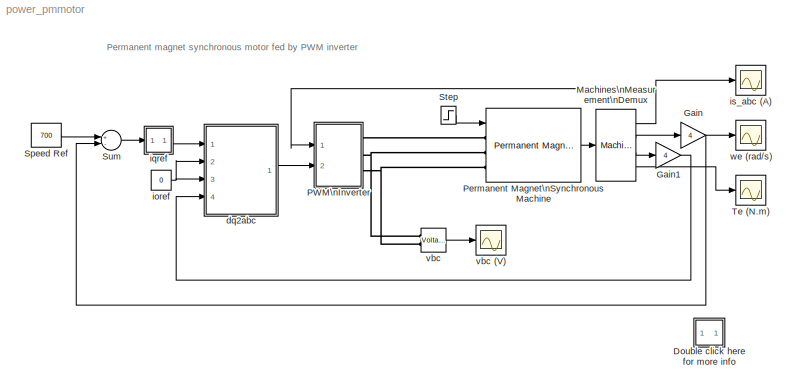
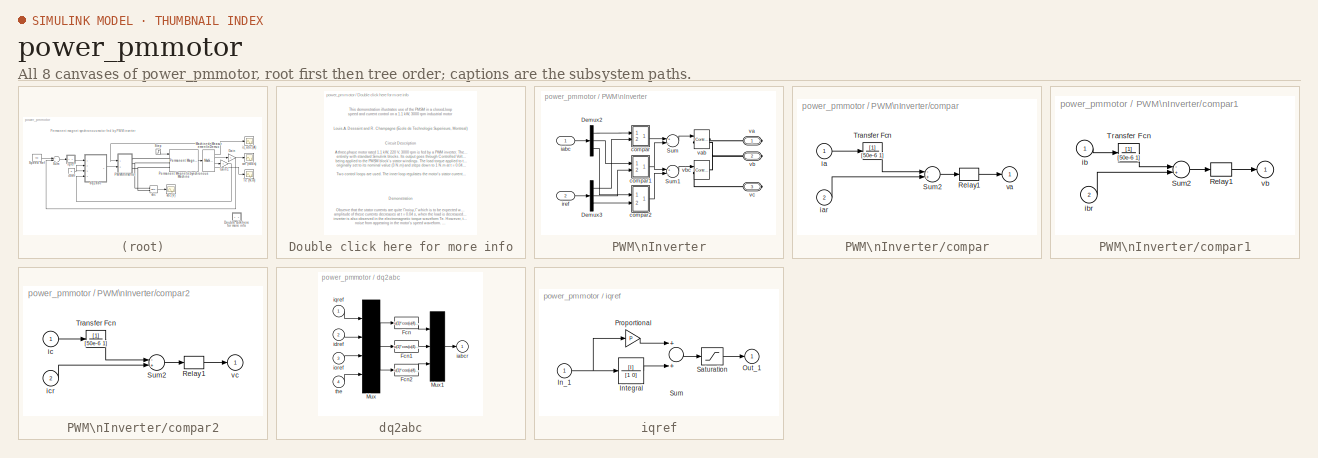
[diagram: thumbnail index - all 8 canvases of the model, root first then tree order]
MODEL power_pmmotor
KIND model
BLOCK [SubSystem] Double click here for more info
  MaskDisplay = disp('?')
  MaskIconFrame = on
  MaskIconOpaque = on
  MaskIconRotate = none
  MaskIconUnits = autoscale
  MinAlgLoopOccurrences = off
  Ports = []
  RTWSystemCode = Auto
  TreatAsAtomicUnit = off
BLOCK [Gain] Gain
  Gain = 4
BLOCK [Gain] Gain1
  Gain = 4
BLOCK [Reference] Machines\nMeasurement\nDemux  REF=powerlib/Machines/Machines\nMeasurement\nDemux
  Ports = [1, 4]
  ShowPortLabels = on
  SourceBlock = powerlib/Machines/Machines\nMeasurement\nDemux
  SourceType = Machine measurements
  asm1 = on
  asm10 = on
  asm11 = on
  asm2 = on
  asm3 = on
  asm4 = on
  asm5 = on
  asm6 = on
  asm7 = on
  asm8 = on
  asm9 = on
  lastType = 4
  machType = Permanent magnet synchronous
  pmsm1 = on
  pmsm2 = off
  pmsm3 = off
  pmsm4 = on
  pmsm5 = on
  pmsm6 = on
  sm1 = on
  sm10 = on
  sm11 = on
  sm115 = off
  sm12 = off
  sm13 = off
  sm14 = off
  sm2 = on
  sm3 = on
  sm4 = on
  sm5 = on
  sm6 = on
  sm7 = on
  sm8 = on
  sm9 = on
  ssm1 = on
  ssm2 = on
  ssm3 = on
  ssm4 = on
  ssm5 = on
  ssm6 = on
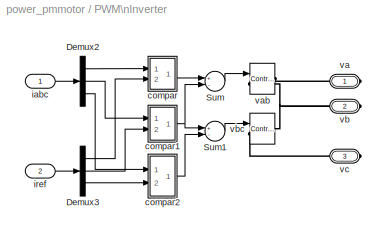
BLOCK [SubSystem] PWM\nInverter
  MinAlgLoopOccurrences = off
  Ports = [2, 0, 0, 0, 0, 0, 3]
  RTWSystemCode = Auto
  TreatAsAtomicUnit = off
BLOCK [Demux] PWM\nInverter/Demux2
  Outputs = 3
  Ports = [1, 3]
BLOCK [Demux] PWM\nInverter/Demux3
  Outputs = 3
  Ports = [1, 3]
BLOCK [Sum] PWM\nInverter/Sum
  Inputs = +-
  Ports = [2, 1]
BLOCK [Sum] PWM\nInverter/Sum1
  Inputs = +-
  Ports = [2, 1]
BLOCK [SubSystem] PWM\nInverter/compar
  MinAlgLoopOccurrences = off
  Ports = [2, 1]
  RTWSystemCode = Auto
  TreatAsAtomicUnit = off
BLOCK [Relay] PWM\nInverter/compar/Relay1
  OffOutputValue = -155
  OffSwitchValue = -0.25
  OnOutputValue = 155
  OnSwitchValue = 0.25
BLOCK [Sum] PWM\nInverter/compar/Sum2
  Inputs = -+
  Ports = [2, 1]
BLOCK [TransferFcn] PWM\nInverter/compar/Transfer Fcn
  Denominator = [50e-6 1]
BLOCK [Inport] PWM\nInverter/compar/ia
  IconDisplay = Port number
  LatchInput = off
  Port = 1
BLOCK [Inport] PWM\nInverter/compar/iar
  IconDisplay = Port number
  LatchInput = off
  Port = 2
BLOCK [Outport] PWM\nInverter/compar/va
  BusOutputAsStruct = off
  IconDisplay = Port number
  InitialOutput = 0
BLOCK [SubSystem] PWM\nInverter/compar1
  MinAlgLoopOccurrences = off
  Ports = [2, 1]
  RTWSystemCode = Auto
  TreatAsAtomicUnit = off
BLOCK [Relay] PWM\nInverter/compar1/Relay1
  OffOutputValue = -155
  OffSwitchValue = -0.25
  OnOutputValue = 155
  OnSwitchValue = 0.25
BLOCK [Sum] PWM\nInverter/compar1/Sum2
  Inputs = -+
  Ports = [2, 1]
BLOCK [TransferFcn] PWM\nInverter/compar1/Transfer Fcn
  Denominator = [50e-6 1]
BLOCK [Inport] PWM\nInverter/compar1/ib
  IconDisplay = Port number
  LatchInput = off
  Port = 1
BLOCK [Inport] PWM\nInverter/compar1/ibr
  IconDisplay = Port number
  LatchInput = off
  Port = 2
BLOCK [Outport] PWM\nInverter/compar1/vb
  BusOutputAsStruct = off
  IconDisplay = Port number
  InitialOutput = 0
BLOCK [SubSystem] PWM\nInverter/compar2
  MinAlgLoopOccurrences = off
  Ports = [2, 1]
  RTWSystemCode = Auto
  TreatAsAtomicUnit = off
BLOCK [Relay] PWM\nInverter/compar2/Relay1
  OffOutputValue = -155
  OffSwitchValue = -0.25
  OnOutputValue = 155
  OnSwitchValue = 0.25
BLOCK [Sum] PWM\nInverter/compar2/Sum2
  Inputs = -+
  Ports = [2, 1]
BLOCK [TransferFcn] PWM\nInverter/compar2/Transfer Fcn
  Denominator = [50e-6 1]
BLOCK [Inport] PWM\nInverter/compar2/ic
  IconDisplay = Port number
  LatchInput = off
  Port = 1
BLOCK [Inport] PWM\nInverter/compar2/icr
  IconDisplay = Port number
  LatchInput = off
  Port = 2
BLOCK [Outport] PWM\nInverter/compar2/vc
  BusOutputAsStruct = off
  IconDisplay = Port number
  InitialOutput = 0
BLOCK [Inport] PWM\nInverter/iabc
  IconDisplay = Port number
  LatchInput = off
  Port = 1
BLOCK [Inport] PWM\nInverter/iref
  IconDisplay = Port number
  LatchInput = off
  Port = 2
BLOCK [PMIOPort] PWM\nInverter/va
  Port = 1
  Side = Right
BLOCK [Reference] PWM\nInverter/vab  REF=powerlib/Electrical\nSources/Controlled Voltage Source
  Amplitude = 0
  AttributesFormatString = \\n
  Description = source block
  Frequency = 0
  Initialize = on
  Measurements = None
  Phase = 0
  Ports = [1, 0, 0, 0, 0, 1, 1]
  ShowPortLabels = on
  SourceBlock = powerlib/Electrical\nSources/Controlled Voltage Source
  SourceType = AC
BLOCK [PMIOPort] PWM\nInverter/vb
  Port = 2
  Side = Right
BLOCK [Reference] PWM\nInverter/vbc  REF=powerlib/Electrical\nSources/Controlled Voltage Source
  Amplitude = 0
  AttributesFormatString = \\n
  Description = source block
  Frequency = 0
  Initialize = on
  Measurements = None
  Phase = 0
  Ports = [1, 0, 0, 0, 0, 1, 1]
  ShowPortLabels = on
  SourceBlock = powerlib/Electrical\nSources/Controlled Voltage Source
  SourceType = AC
BLOCK [PMIOPort] PWM\nInverter/vc
  Port = 3
  Side = Right
BLOCK [Reference] Permanent Magnet\nSynchronous Machine  REF=powerlib/Machines/Permanent Magnet\nSynchronous Machine
  AttributesFormatString = \\n
  Flux = 0.175
  Inductances = [8.5e-3, 8.5e-3]
  Mechanical = [ 0.8e-3, 0,  4 ]
  Ports = [1, 1, 0, 0, 0, 3]
  PresetModel = No
  Resistance = 2.875
  ShowDetailedParameters = on
  ShowPortLabels = on
  SourceBlock = powerlib/Machines/Permanent Magnet\nSynchronous Machine
  SourceType = Permanent Magnet Synchronous Machine
BLOCK [Constant] Speed Ref
  Value = 700
BLOCK [Step] Step
  Before = 3
  SampleTime = 0
  Time = 0.04
BLOCK [Sum] Sum
  Inputs = +-
  Ports = [2, 1]
BLOCK [Scope] Te (N.m)
  DataFormat = Structure
  LimitDataPoints = off
  NumInputPorts = 1
  Ports = [1]
  TimeRange = 0.06
  YMax = 35
  YMin = -20
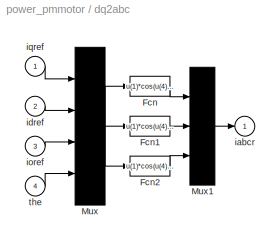
BLOCK [SubSystem] dq2abc
  MinAlgLoopOccurrences = off
  Ports = [4, 1]
  RTWSystemCode = Auto
  TreatAsAtomicUnit = off
BLOCK [Fcn] dq2abc/Fcn
  Expr = u(1)*cos(u(4)) + u(2)*sin(u(4)) + u(3)
BLOCK [Fcn] dq2abc/Fcn1
  Expr = u(1)*cos(u(4)-2*pi/3) + u(2)*sin(u(4)-2*pi/3) + u(3)
BLOCK [Fcn] dq2abc/Fcn2
  Expr = u(1)*cos(u(4)+2*pi/3) + u(2)*sin(u(4)+2*pi/3) + u(3)
BLOCK [Mux] dq2abc/Mux
  Ports = [4, 1]
BLOCK [Mux] dq2abc/Mux1
  Inputs = 3
  Ports = [3, 1]
BLOCK [Outport] dq2abc/iabcr
  BusOutputAsStruct = off
  IconDisplay = Port number
  InitialOutput = 0
BLOCK [Inport] dq2abc/idref
  IconDisplay = Port number
  LatchInput = off
  Port = 2
BLOCK [Inport] dq2abc/ioref
  IconDisplay = Port number
  LatchInput = off
  Port = 3
BLOCK [Inport] dq2abc/iqref
  IconDisplay = Port number
  LatchInput = off
  Port = 1
BLOCK [Inport] dq2abc/the
  IconDisplay = Port number
  LatchInput = off
  Port = 4
BLOCK [Constant] ioref
  Value = 0
BLOCK [SubSystem] iqref
  MaskCallbackString = ||
  MaskDisplay = disp('PI')
  MaskEnableString = on,on,on
  MaskIconFrame = on
  MaskIconOpaque = on
  MaskIconRotate = none
  MaskIconUnits = autoscale
  MaskInitialization = I=@1;P=@2;sat=@3;min=sat(1);max=sat(2);
  MaskPromptString = Integral|Proportional:|Minimum and maximum outputs:
  MaskStyleString = edit,edit,edit
  MaskTabNameString = ,,
  MaskToolTipString = on,on,on
  MaskTunableValueString = on,on,on
  MaskType = PI Controller
  MaskValueString = 2.6|50| [-30, 30]
  MaskVarAliasString = ,,
  MaskVisibilityString = on,on,on
  MinAlgLoopOccurrences = off
  Ports = [1, 1]
  RTWSystemCode = Auto
  TreatAsAtomicUnit = off
BLOCK [Inport] iqref/In_1
  IconDisplay = Port number
  LatchInput = off
  Port = 1
BLOCK [TransferFcn] iqref/Integral
  Denominator = [1 0]
  Numerator = [I]
BLOCK [Outport] iqref/Out_1
  BusOutputAsStruct = off
  IconDisplay = Port number
  InitialOutput = 0
BLOCK [Gain] iqref/Proportional
  Gain = P
BLOCK [Saturate] iqref/Saturation
  LowerLimit = min
  UpperLimit = max
BLOCK [Sum] iqref/Sum
  Ports = [2, 1]
BLOCK [Scope] is_abc (A)
  DataFormat = Structure
  LimitDataPoints = off
  NumInputPorts = 1
  Ports = [1]
  TimeRange = 0.06
  YMax = 35
  YMin = -30
BLOCK [Reference] vbc  REF=powerlib/Measurements/Voltage Measurement
  AttributesFormatString = \\n
  OutputType = Magnitude
  PSBequivalent = 0
  PhasorSimulation = off
  Ports = [0, 1, 0, 0, 0, 2]
  ShowPortLabels = on
  SourceBlock = powerlib/Measurements/Voltage Measurement
  SourceType = Voltage Measurement
  Tag = PoWeRsYsTeMmEaSuReMeNt
BLOCK [Scope] vbc (V)
  DataFormat = Structure
  LimitDataPoints = off
  NumInputPorts = 1
  Ports = [1]
  TimeRange = 0.06
  YMax = 500
  YMin = -500
BLOCK [Scope] we (rad//s)
  DataFormat = Structure
  LimitDataPoints = off
  NumInputPorts = 1
  Ports = [1]
  TimeRange = 0.06
  YMax = 800
  YMin = 0
ANNOTATION (root): Permanent magnet synchronous motor fed by PWM inverter
ANNOTATION Double click here for more info: A three-phase motor rated 1.1 kW, 220 V, 3000 rpm is fed by a PWM inverter. The PWM inverter is built \nentirely with standard Simulink blocks. Its output goes through Controlled Voltage Source blocks before \nbeing applied to the PMSM block's stator windings. The load torque applied to the machine's shaft is \noriginally set to its nominal value (3 N.m) and steps down to 1 N.m at t = 0.04 s. \n\n...<+126ch>
ANNOTATION Double click here for more info: Circuit Description
ANNOTATION Double click here for more info: Demonstration
ANNOTATION Double click here for more info: Louis-A. Dessaint and R. Champagne (Ecole de Technologie Superieure, Montreal)
ANNOTATION Double click here for more info: Observe that the stator currents are quite \"noisy,\" which is to be expected when using PWM inverters. Also, the \namplitude of these currents decreases at t = 0.04 s, when the load is decreased. The noise introduced by the PWM\ninverter is also observed in the electromagnetic torque waveform Te. However, the motor's inertia prevents this\nnoise from appearing in the motor's speed waveform.
ANNOTATION Double click here for more info: This demonstration illustrates use of the PMSM in a closed-loop\nspeed and current control on a 1.1 kW, 3000 rpm industrial motor
LINE Gain1:1 -> dq2abc:4
NET Gain:1 -> Sum:2, we (rad//s):1
NET Machines\nMeasurement\nDemux:1 -> PWM\nInverter:1, is_abc (A):1
LINE Machines\nMeasurement\nDemux:2 -> Gain:1
LINE Machines\nMeasurement\nDemux:3 -> Gain1:1
LINE Machines\nMeasurement\nDemux:4 -> Te (N.m):1
LINE PWM\nInverter/Demux2:1 -> PWM\nInverter/compar:1
LINE PWM\nInverter/Demux2:2 -> PWM\nInverter/compar1:1
LINE PWM\nInverter/Demux2:3 -> PWM\nInverter/compar2:1
LINE PWM\nInverter/Demux3:1 -> PWM\nInverter/compar:2
LINE PWM\nInverter/Demux3:2 -> PWM\nInverter/compar1:2
LINE PWM\nInverter/Demux3:3 -> PWM\nInverter/compar2:2
LINE PWM\nInverter/Sum1:1 -> PWM\nInverter/vbc:1
LINE PWM\nInverter/Sum:1 -> PWM\nInverter/vab:1
LINE PWM\nInverter/compar/Relay1:1 -> PWM\nInverter/compar/va:1
LINE PWM\nInverter/compar/Sum2:1 -> PWM\nInverter/compar/Relay1:1
LINE PWM\nInverter/compar/Transfer Fcn:1 -> PWM\nInverter/compar/Sum2:1
LINE PWM\nInverter/compar/ia:1 -> PWM\nInverter/compar/Transfer Fcn:1
LINE PWM\nInverter/compar/iar:1 -> PWM\nInverter/compar/Sum2:2
LINE PWM\nInverter/compar1/Relay1:1 -> PWM\nInverter/compar1/vb:1
LINE PWM\nInverter/compar1/Sum2:1 -> PWM\nInverter/compar1/Relay1:1
LINE PWM\nInverter/compar1/Transfer Fcn:1 -> PWM\nInverter/compar1/Sum2:1
LINE PWM\nInverter/compar1/ib:1 -> PWM\nInverter/compar1/Transfer Fcn:1
LINE PWM\nInverter/compar1/ibr:1 -> PWM\nInverter/compar1/Sum2:2
NET PWM\nInverter/compar1:1 -> PWM\nInverter/Sum1:1, PWM\nInverter/Sum:2
LINE PWM\nInverter/compar2/Relay1:1 -> PWM\nInverter/compar2/vc:1
LINE PWM\nInverter/compar2/Sum2:1 -> PWM\nInverter/compar2/Relay1:1
LINE PWM\nInverter/compar2/Transfer Fcn:1 -> PWM\nInverter/compar2/Sum2:1
LINE PWM\nInverter/compar2/ic:1 -> PWM\nInverter/compar2/Transfer Fcn:1
LINE PWM\nInverter/compar2/icr:1 -> PWM\nInverter/compar2/Sum2:2
LINE PWM\nInverter/compar2:1 -> PWM\nInverter/Sum1:2
LINE PWM\nInverter/compar:1 -> PWM\nInverter/Sum:1
LINE PWM\nInverter/iabc:1 -> PWM\nInverter/Demux2:1
LINE PWM\nInverter/iref:1 -> PWM\nInverter/Demux3:1
LINE Permanent Magnet\nSynchronous Machine:1 -> Machines\nMeasurement\nDemux:1
LINE Speed Ref:1 -> Sum:1
LINE Step:1 -> Permanent Magnet\nSynchronous Machine:1
LINE Sum:1 -> iqref:1
LINE dq2abc/Fcn1:1 -> dq2abc/Mux1:2
LINE dq2abc/Fcn2:1 -> dq2abc/Mux1:3
LINE dq2abc/Fcn:1 -> dq2abc/Mux1:1
LINE dq2abc/Mux1:1 -> dq2abc/iabcr:1
NET dq2abc/Mux:1 -> dq2abc/Fcn1:1, dq2abc/Fcn2:1, dq2abc/Fcn:1
LINE dq2abc/idref:1 -> dq2abc/Mux:2
LINE dq2abc/ioref:1 -> dq2abc/Mux:3
LINE dq2abc/iqref:1 -> dq2abc/Mux:1
LINE dq2abc/the:1 -> dq2abc/Mux:4
LINE dq2abc:1 -> PWM\nInverter:2
NET ioref:1 -> dq2abc:2, dq2abc:3
NET iqref/In_1:1 -> iqref/Integral:1, iqref/Proportional:1
LINE iqref/Integral:1 -> iqref/Sum:2
LINE iqref/Proportional:1 -> iqref/Sum:1
LINE iqref/Saturation:1 -> iqref/Out_1:1
LINE iqref/Sum:1 -> iqref/Saturation:1
LINE iqref:1 -> dq2abc:1
LINE vbc:1 -> vbc (V):1
PLINE PWM\nInverter/va:RConn1 -- PWM\nInverter/vab:RConn1
PNET net1: PWM\nInverter/vab:LConn1 -- PWM\nInverter/vb:RConn1 -- PWM\nInverter/vbc:RConn1
PLINE PWM\nInverter/vbc:LConn1 -- PWM\nInverter/vc:RConn1
PLINE PWM\nInverter:RConn1 -- Permanent Magnet\nSynchronous Machine:LConn1
PNET net2: PWM\nInverter:RConn2 -- Permanent Magnet\nSynchronous Machine:LConn2 -- vbc:LConn1
PNET net3: PWM\nInverter:RConn3 -- Permanent Magnet\nSynchronous Machine:LConn3 -- vbc:LConn2
note: NET lines group one-source signal fan-out (src -> all destinations, sorted); 1:1 wires keep LINE; PNET lines group multi-terminal physical nets as a canonical sorted terminal list (undirected conserving connections); 2-terminal nets keep the pairwise PLINE form
